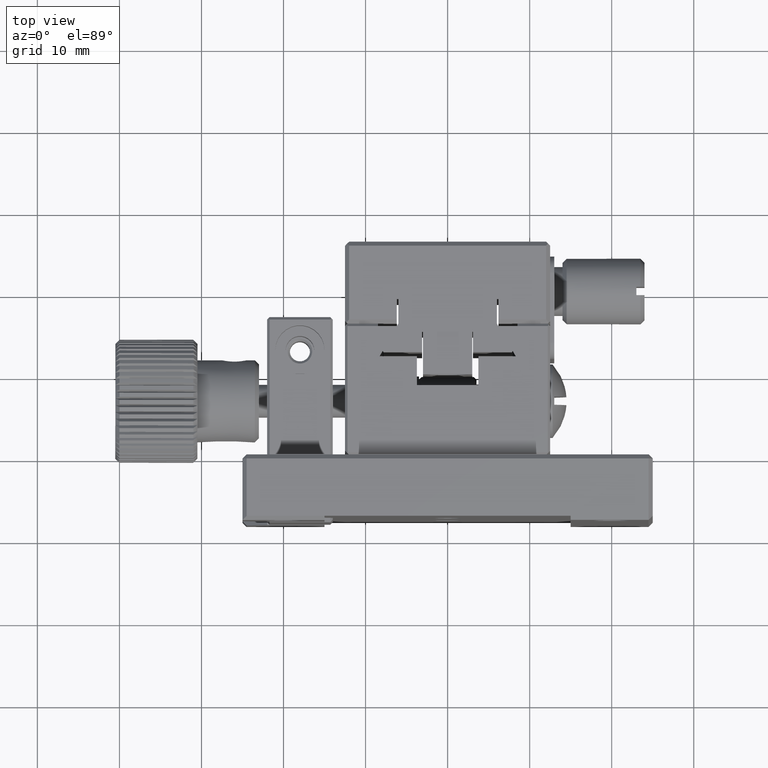
[diagram: clean part render]
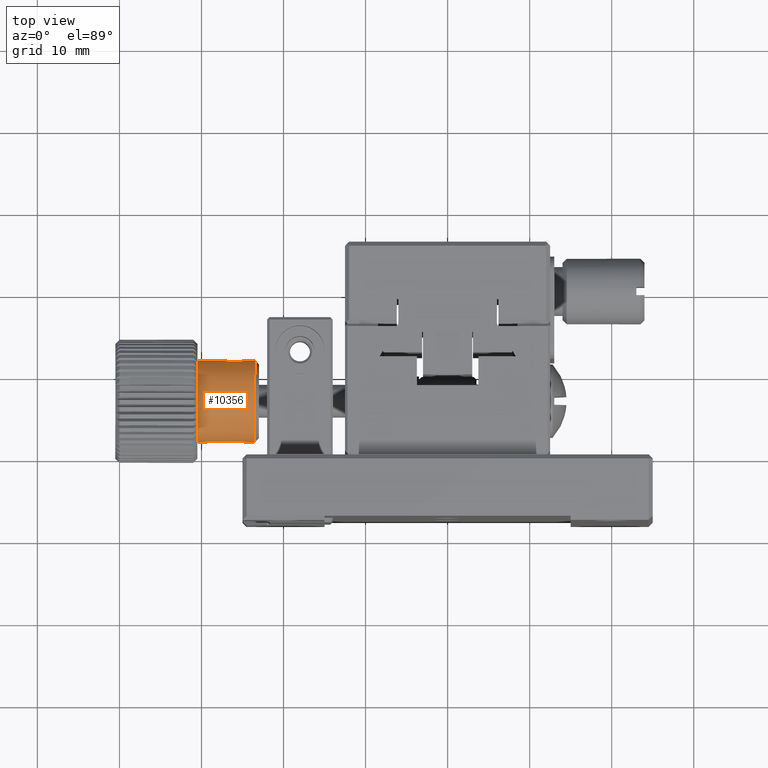
[diagram: same view with one face highlighted and labeled with its STEP entity id]
A machine part, top view. The second image highlights one B-rep face of the part: STEP entity #10356.
In plain terms, the highlighted conical surface has half-angle 0.002 deg.
Its self-contained STEP definition (entity closure, byte-faithful):
#130 = ORIENTED_EDGE ( 'NONE', *, *, #12579, .T. ) ;
#228 = CARTESIAN_POINT ( 'NONE',  ( -24.55124898653780718, 11.86981684289372474, 0.2641160997322850590 ) ) ;
#241 = ORIENTED_EDGE ( 'NONE', *, *, #11057, .T. ) ;
#474 = EDGE_LOOP ( 'NONE', ( #130 ) ) ;
#1042 = CARTESIAN_POINT ( 'NONE',  ( -26.78560875939156816, 11.75396800269909292, 1.117351537934577532 ) ) ;
#1292 = CARTESIAN_POINT ( 'NONE',  ( -24.52355028807195580, 11.87604769482432765, 0.08419208418378139325 ) ) ;
#1373 = CARTESIAN_POINT ( 'NONE',  ( -27.32552703253868742, 11.84606083748166583, -0.6054328459994254841 ) ) ;
#1425 = DIRECTION ( 'NONE',  ( 0.001492500475197009466, 0.9999988862205454465, 0.000000000000000000 ) ) ;
#1531 = CARTESIAN_POINT ( 'NONE',  ( -24.54439225609344533, 11.87134501809963183, -0.2815292079540943071 ) ) ;
#2041 = CARTESIAN_POINT ( 'NONE',  ( -30.48891515559764898, 11.88459046025345778, 0.000000000000000000 ) ) ;
#2264 = CARTESIAN_POINT ( 'NONE',  ( -25.89650825575588655, 11.70557382893518472, 1.301465513040424238 ) ) ;
#2506 = CARTESIAN_POINT ( 'NONE',  ( -26.28588031508349587, 11.70911744537533394, -1.290413989199561406 ) ) ;
#2602 = CARTESIAN_POINT ( 'NONE',  ( -25.19842783927019525, 11.75363003889079039, 1.105923802387829058 ) ) ;
#3651 = AXIS2_PLACEMENT_3D ( 'NONE', #8767, #7859, #13786 ) ;
#3757 = EDGE_LOOP ( 'NONE', ( #241 ) ) ;
#3758 = FACE_BOUND ( 'NONE', #7365, .T. ) ;
#3819 = CARTESIAN_POINT ( 'NONE',  ( -27.46017212405392982, 11.87563672542136572, 0.2808637201407904183 ) ) ;
#4067 = CARTESIAN_POINT ( 'NONE',  ( -26.46751525413776562, 11.72091242804737732, -1.248484615200541326 ) ) ;
#5042 = CARTESIAN_POINT ( 'NONE',  ( -26.95762419547207500, 11.77852575217102249, -1.007587484603958083 ) ) ;
#5220 = CARTESIAN_POINT ( 'NONE',  ( -25.21879347419880801, 11.75162663983536326, -1.117706428538235208 ) ) ;
#5300 = CARTESIAN_POINT ( 'NONE',  ( -27.49176532432447573, 11.88287042810992844, -0.08381073591016081903 ) ) ;
#6189 = CARTESIAN_POINT ( 'NONE',  ( -25.38646776863066634, 11.73220872143931892, -1.196373740980477995 ) ) ;
#6293 = CARTESIAN_POINT ( 'NONE',  ( -27.20885629897895441, 11.82246728689788462, 0.7713834544118592929 ) ) ;
#6368 = CARTESIAN_POINT ( 'NONE',  ( -25.89650825575588655, 11.70557382893518472, 1.301465513040424238 ) ) ;
#7249 = CARTESIAN_POINT ( 'NONE',  ( -26.26609797967135762, 11.70840373223341224, 1.293902757539706627 ) ) ;
#7340 = CARTESIAN_POINT ( 'NONE',  ( -26.08080853682777445, 11.70267379100526206, 1.313211766609707176 ) ) ;
#7365 = EDGE_LOOP ( 'NONE', ( #10260 ) ) ;
#7415 = CARTESIAN_POINT ( 'NONE',  ( -24.57548677908855694, 11.86438288738450453, 0.3513847112637591419 ) ) ;
#7495 = CARTESIAN_POINT ( 'NONE',  ( -24.92320663639161182, 11.79509011972425725, -0.9052343437490814049 ) ) ;
#7516 = FACE_OUTER_BOUND ( 'NONE', #474, .T. ) ;
#7593 = CARTESIAN_POINT ( 'NONE',  ( -24.68812187974767980, 11.84043229617102533, 0.6015180853819367401 ) ) ;
#7668 = CARTESIAN_POINT ( 'NONE',  ( -25.53589160019248183, 11.71954429724676316, 1.248627906529444109 ) ) ;
#7723 = DIRECTION ( 'NONE',  ( 0.9999988862205456686, -0.001492500475197029632, 0.000000000000000000 ) ) ;
#7742 = CARTESIAN_POINT ( 'NONE',  ( -24.79031958822968207, 11.82036506401611931, 0.7497421063474991598 ) ) ;
#7859 = DIRECTION ( 'NONE',  ( -0.9999988862205456686, 0.001492500475197029632, -0.000000000000000000 ) ) ;
#8341 = CARTESIAN_POINT ( 'NONE',  ( -25.89650825575589721, 11.70557382893518650, 1.301465513040424682 ) ) ;
#8561 = B_SPLINE_CURVE_WITH_KNOTS ( 'NONE', 3,
 ( #2264, #7340, #7249, #12281, #1042, #10047, #6293, #11207, #3819, #5300, #12617, #1373, #16225, #5042, #15317, #4067, #2506, #15071, #11304, #6189, #5220, #7495, #10129, #15245, #1531, #13753, #1292, #228, #7415, #8812, #7593, #7742, #8732, #13848, #2602, #7668, #9061, #6368 ),
 .UNSPECIFIED., .T., .F.,
 ( 4, 2, 2, 2, 2, 2, 2, 2, 2, 2, 2, 2, 2, 2, 2, 2, 2, 2, 4 ),
 ( 0.000000000000000000, 0.0005498402690001808618, 0.001099680538000361724, 0.001649520807000542369, 0.002199361076000723014, 0.002749201345000903875, 0.003299041614001083870, 0.003848881883001264298, 0.004398722152001444292, 0.004948562421001625154, 0.005498402690001805149, 0.006048242959001986011, 0.006598083228002166872, 0.006873003362502257303, 0.007147923497002347734, 0.007422843631502438165, 0.007697763766002528596, 0.008247604035002718131, 0.008797444304002905932 ),
 .UNSPECIFIED. ) ;
#8593 = VERTEX_POINT ( 'NONE', #9904 ) ;
#8732 = CARTESIAN_POINT ( 'NONE',  ( -24.84888424485217229, 11.80941850190413867, 0.8182885172338588697 ) ) ;
#8767 = CARTESIAN_POINT ( 'NONE',  ( -23.49621247369509547, 6.874626842607129085, 0.000000000000000000 ) ) ;
#8812 = CARTESIAN_POINT ( 'NONE',  ( -24.64404631142112834, 11.84965426748264505, 0.5207484811765310528 ) ) ;
#9061 = CARTESIAN_POINT ( 'NONE',  ( -25.71220797468400221, 11.70847386686510561, 1.289719259471140855 ) ) ;
#9904 = CARTESIAN_POINT ( 'NONE',  ( -23.48875023186974431, 11.87444672331415241, 0.000000000000000000 ) ) ;
#9905 = CIRCLE ( 'NONE', #14124, 4.999521425576134881 ) ;
#10047 = CARTESIAN_POINT ( 'NONE',  ( -27.08028389802859337, 11.79813108105359376, 0.9056398010895485573 ) ) ;
#10072 = FACE_BOUND ( 'NONE', #3757, .T. ) ;
#10129 = CARTESIAN_POINT ( 'NONE',  ( -24.79498901254337184, 11.81902260235334623, -0.7710618148352791357 ) ) ;
#10260 = ORIENTED_EDGE ( 'NONE', *, *, #10653, .T. ) ;
#10356 = ADVANCED_FACE ( 'NONE', ( #3758, #7516, #10072 ), #14613, .T. ) ;
#10653 = EDGE_CURVE ( 'NONE', #14519, #14519, #8561, .T. ) ;
#11057 = EDGE_CURVE ( 'NONE', #13137, #13137, #9905, .T. ) ;
#11207 = CARTESIAN_POINT ( 'NONE',  ( -27.39905652726446661, 11.86141125939535712, 0.4596917506949321219 ) ) ;
#11304 = CARTESIAN_POINT ( 'NONE',  ( -25.73707293548886099, 11.70767384751328066, -1.293766632651652593 ) ) ;
#11401 = CARTESIAN_POINT ( 'NONE',  ( -23.49621247381109868, 6.874626842607315602, 0.000000000000000000 ) ) ;
#11480 = DIRECTION ( 'NONE',  ( 0.9999988862205549944, -0.001492500468900264223, 0.000000000000000000 ) ) ;
#12281 = CARTESIAN_POINT ( 'NONE',  ( -26.61743226553482344, 11.73398557773885464, 1.196397539840618363 ) ) ;
#12551 = DIRECTION ( 'NONE',  ( 0.001492500468900610517, 0.9999988862205549944, 0.000000000000000000 ) ) ;
#12579 = EDGE_CURVE ( 'NONE', #8593, #8593, #15971, .T. ) ;
#12617 = CARTESIAN_POINT ( 'NONE',  ( -27.46186871918006744, 11.87571360872352599, -0.2704614615447468728 ) ) ;
#13137 = VERTEX_POINT ( 'NONE', #2041 ) ;
#13736 = CARTESIAN_POINT ( 'NONE',  ( -30.49637694370107610, 6.885074603041569041, 0.000000000000000000 ) ) ;
#13753 = CARTESIAN_POINT ( 'NONE',  ( -24.52046411583771146, 11.87675741172449584, -0.009226580884517209327 ) ) ;
#13786 = DIRECTION ( 'NONE',  ( 0.001492500468437748997, 0.9999988862205556606, 0.000000000000000000 ) ) ;
#13848 = CARTESIAN_POINT ( 'NONE',  ( -25.04633810178544095, 11.77573156911270402, 1.007957636404207769 ) ) ;
#14124 = AXIS2_PLACEMENT_3D ( 'NONE', #13736, #7723, #1425 ) ;
#14519 = VERTEX_POINT ( 'NONE', #8341 ) ;
#14613 = CONICAL_SURFACE ( 'NONE', #15659, 4.999825449409764033, 4.343090331616664791E-05 ) ;
#15071 = CARTESIAN_POINT ( 'NONE',  ( -25.92260737180878039, 11.70252905371638796, -1.312897425224758940 ) ) ;
#15245 = CARTESIAN_POINT ( 'NONE',  ( -24.60498285256707973, 11.85740465270916566, -0.4592582457925941108 ) ) ;
#15317 = CARTESIAN_POINT ( 'NONE',  ( -26.80123266117200487, 11.75545296529152850, -1.108040463377133023 ) ) ;
#15659 = AXIS2_PLACEMENT_3D ( 'NONE', #11401, #11480, #12551 ) ;
#15971 = CIRCLE ( 'NONE', #3651, 4.999825449409834199 ) ;
#16225 = CARTESIAN_POINT ( 'NONE',  ( -27.21790993354087718, 11.82360318783271680, -0.7584753257037771812 ) ) ;